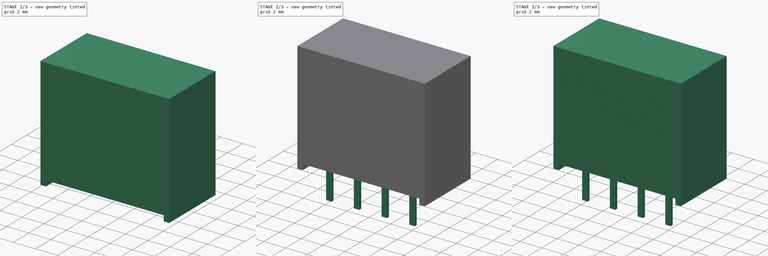
[diagram: build sequence overview — one tinted view per stage of 3, left to right]
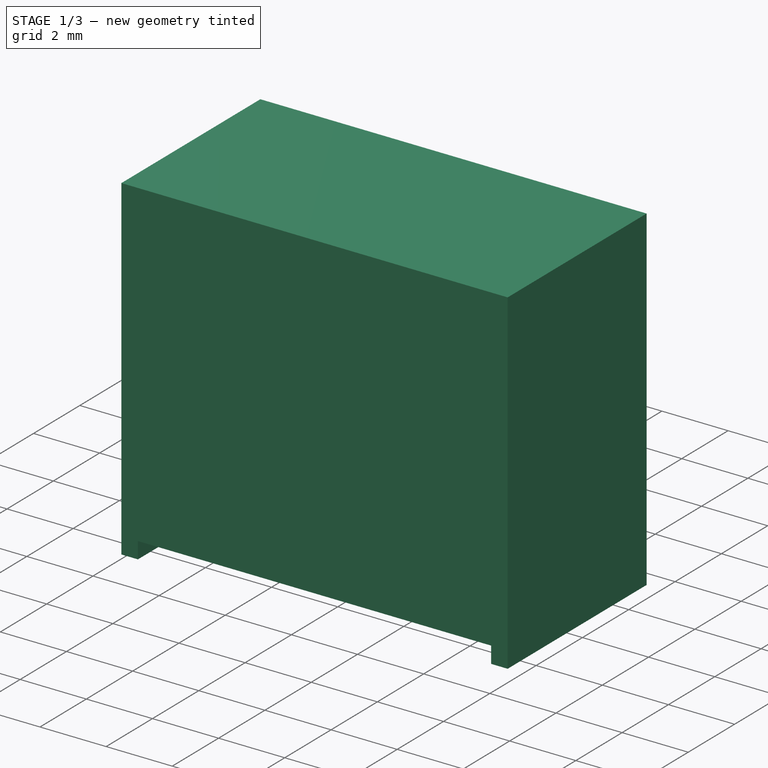
[diagram: stage 1 of 3 — iso view after this stage's code; geometry added in this stage tinted green]
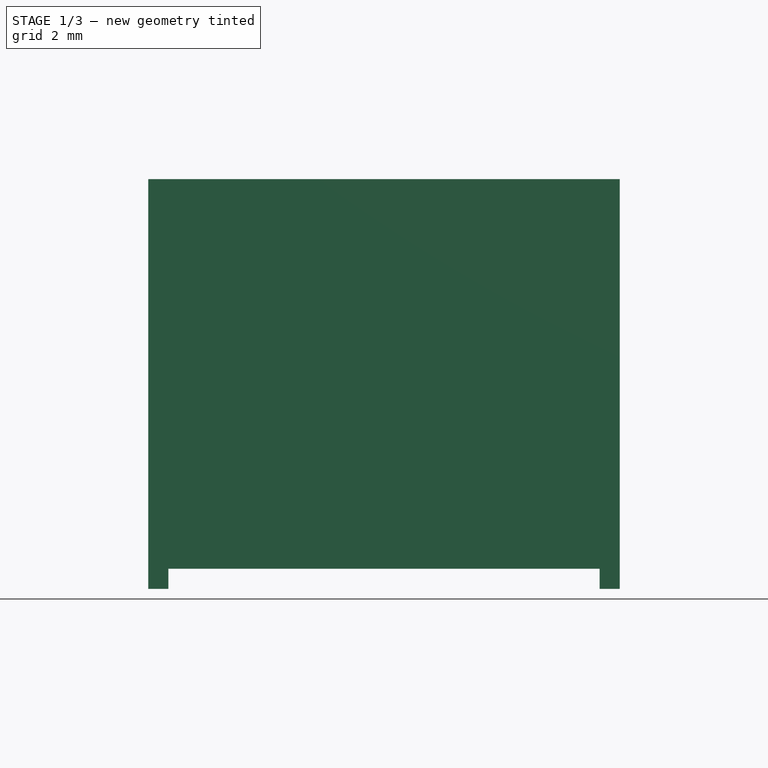
[diagram: stage 1 of 3 — front view after this stage's code; geometry added in this stage tinted green]
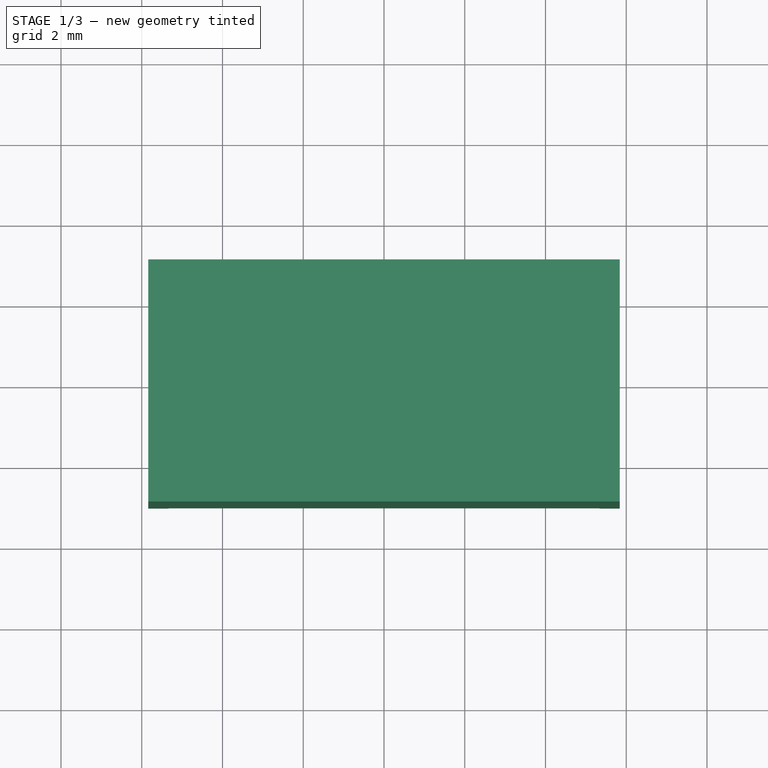
[diagram: stage 1 of 3 — top view after this stage's code; geometry added in this stage tinted green]
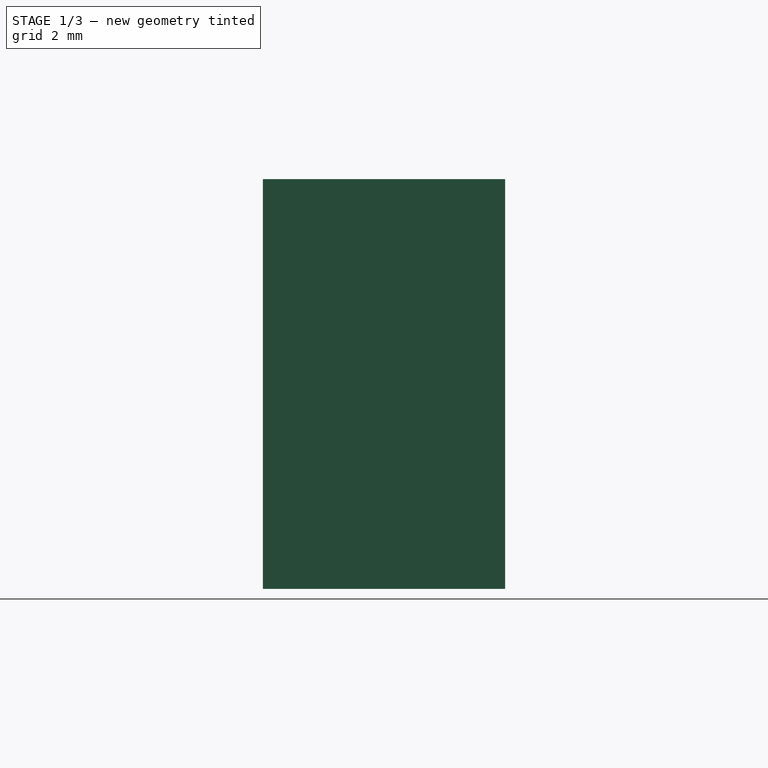
[diagram: stage 1 of 3 — right view after this stage's code; geometry added in this stage tinted green]
FCSTD DOCUMENT  (FreeCAD 1.0R39109 (Git))
Label: traco-sip4-tba1
License: All rights reserved
LicenseURL: https://en.wikipedia.org/wiki/All_rights_reserved
objects: Sketcher::SketchObject×5, PartDesign::Pad×5, Part::Feature×1, PartDesign::Body×1
note: 27 computed .brp shape members not serialized (recipe doc carries the construction recipe); baked Part::Feature solids carry a one-line shape summary decoded from their .brp

FEATURE [Sketcher::SketchObject] Sketch
  ArcFitTolerance = 1e-06
  AttachmentSupport = -> [XY_Plane]
  FullyConstrained = true
  MakeInternals = false
  MapMode = 5
  sketch-geometry (4):
    g0: LineSegment StartX=-5.84 StartY=3 StartZ=0 EndX=5.84 EndY=3 EndZ=0
    g1: LineSegment StartX=5.84 StartY=3 StartZ=0 EndX=5.84 EndY=-3 EndZ=0
    g2: LineSegment StartX=5.84 StartY=-3 StartZ=0 EndX=-5.84 EndY=-3 EndZ=0
    g3: LineSegment StartX=-5.84 StartY=-3 StartZ=0 EndX=-5.84 EndY=3 EndZ=0
  constraints (11):
    c: Coincident(g0,g1)
    c: Coincident(g1,g2)
    c: Coincident(g2,g3)
    c: Coincident(g3,g0)
    c: Horizontal(g0)
    c: Horizontal(g2)
    c: Vertical(g1)
    c: Vertical(g3)
    c: DistanceY(g1,g1) = 6
    c: DistanceX(g0,g0) = 11.68
    c: Symmetric(g0,g1,g-1)
FEATURE [PartDesign::Pad] Pad
  Direction = (0,0,1)
  Length = 9.65
  Length2 = 10
  Profile = -> Sketch
  ReferenceAxis = -> Sketch [N_Axis]
  Suppressed = false
  Type = 0
FEATURE [Sketcher::SketchObject] Sketch001
  ArcFitTolerance = 1e-06
  AttachmentSupport = -> [Pad]
  FullyConstrained = true
  MakeInternals = false
  MapMode = 5
  Placement = pos=(0,0,0) rot=(1,0,0;3.14159rad)
  sketch-geometry (8):
    g0: LineSegment StartX=-5.84 StartY=3 StartZ=0 EndX=-5.34 EndY=3 EndZ=0
    g1: LineSegment StartX=-5.34 StartY=3 StartZ=0 EndX=-5.34 EndY=-3 EndZ=0
    g2: LineSegment StartX=-5.34 StartY=-3 StartZ=0 EndX=-5.84 EndY=-3 EndZ=0
    g3: LineSegment StartX=-5.84 StartY=-3 StartZ=0 EndX=-5.84 EndY=3 EndZ=0
    g4: LineSegment StartX=5.34 StartY=3 StartZ=0 EndX=5.84 EndY=3 EndZ=0
    g5: LineSegment StartX=5.84 StartY=3 StartZ=0 EndX=5.84 EndY=-3 EndZ=0
    g6: LineSegment StartX=5.84 StartY=-3 StartZ=0 EndX=5.34 EndY=-3 EndZ=0
    g7: LineSegment StartX=5.34 StartY=-3 StartZ=0 EndX=5.34 EndY=3 EndZ=0
  constraints (23):
    c: Coincident(g0,g1)
    c: Coincident(g1,g2)
    c: Coincident(g2,g3)
    c: Coincident(g3,g0)
    c: Horizontal(g0)
    c: Horizontal(g2)
    c: Vertical(g1)
    c: Vertical(g3)
    c: DistanceX(g0,g0) = 0.5
    c: DistanceY(g3,g3) = 6
    c: DistanceY(g-1,g0) = 3
    c: Coincident(g4,g5)
    c: Coincident(g5,g6)
    c: Coincident(g6,g7)
    c: Coincident(g7,g4)
    c: Horizontal(g4)
    c: Horizontal(g6)
    c: Vertical(g5)
    c: Vertical(g7)
    c: Equal(g7,g1)
    c: Equal(g4,g0)
    c: Symmetric(g4,g2,g-1)
    c: DistanceX(g0,g-1) = 5.84
FEATURE [PartDesign::Pad] Pad001
  BaseFeature = -> Pad
  Direction = (0,0,-1)
  Length = 0.5
  Length2 = 10
  Profile = -> Sketch001
  ReferenceAxis = -> Sketch001 [N_Axis]
  Suppressed = false
  Type = 0
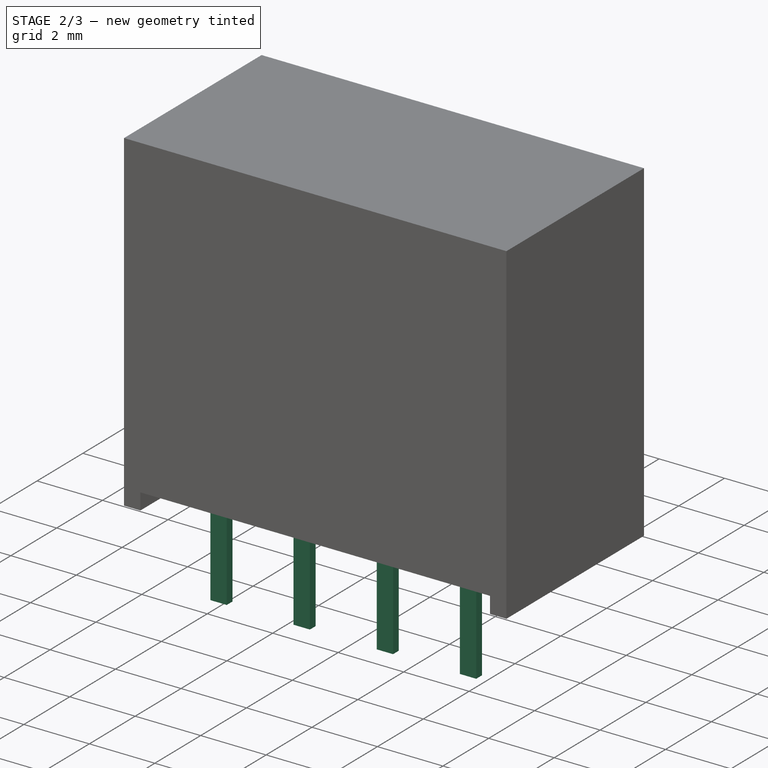
[diagram: stage 2 of 3 — iso view after this stage's code; geometry added in this stage tinted green]
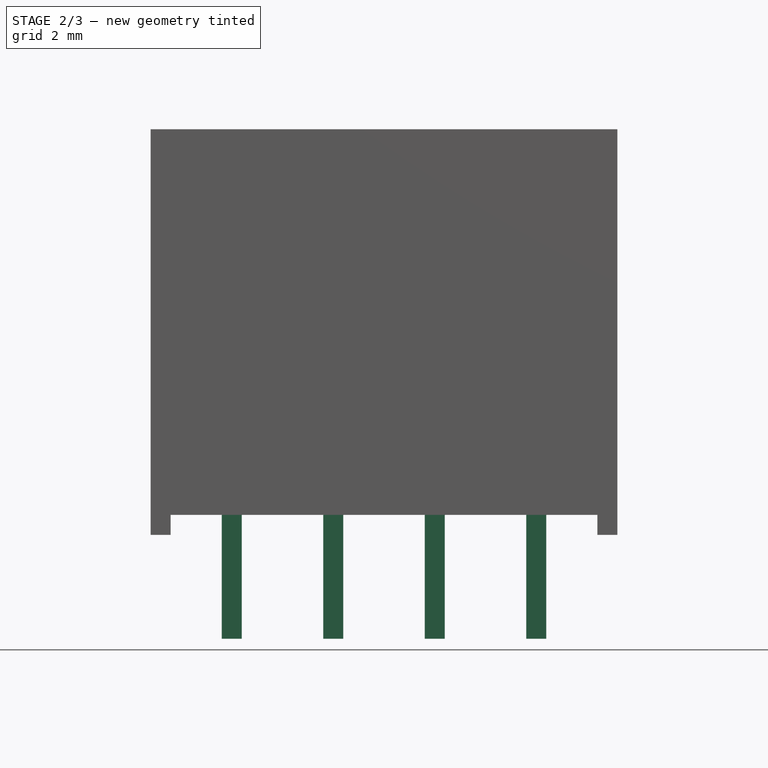
[diagram: stage 2 of 3 — front view after this stage's code; geometry added in this stage tinted green]
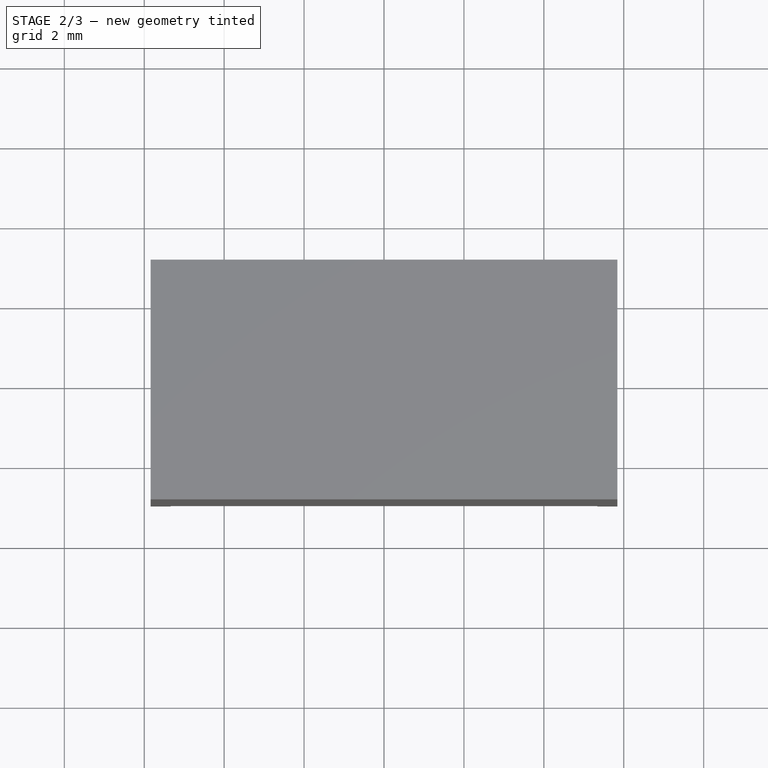
[diagram: stage 2 of 3 — top view after this stage's code; geometry added in this stage tinted green]
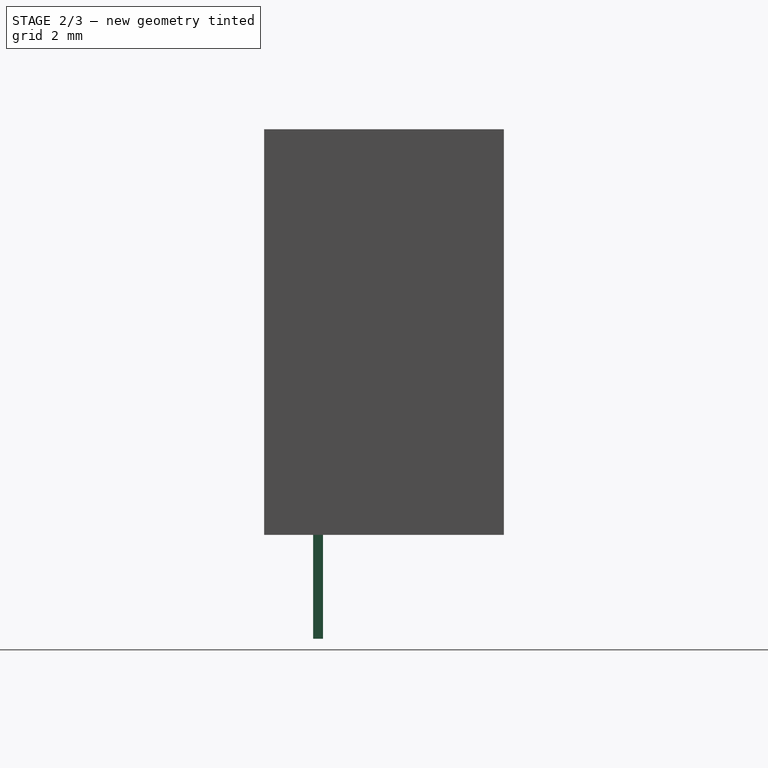
[diagram: stage 2 of 3 — right view after this stage's code; geometry added in this stage tinted green]
FEATURE [Sketcher::SketchObject] Sketch002
  ArcFitTolerance = 1e-06
  AttachmentSupport = -> [Pad001]
  FullyConstrained = true
  MakeInternals = false
  MapMode = 5
  Placement = pos=(0,0,0) rot=(1,0,0;3.14159rad)
  sketch-geometry (16):
    g0: LineSegment StartX=-4.06 StartY=1.775 StartZ=0 EndX=-3.56 EndY=1.775 EndZ=0
    g1: LineSegment StartX=-3.56 StartY=1.775 StartZ=0 EndX=-3.56 EndY=1.525 EndZ=0
    g2: LineSegment StartX=-3.56 StartY=1.525 StartZ=0 EndX=-4.06 EndY=1.525 EndZ=0
    g3: LineSegment StartX=-4.06 StartY=1.525 StartZ=0 EndX=-4.06 EndY=1.775 EndZ=0
    g4: LineSegment StartX=-1.52 StartY=1.775 StartZ=0 EndX=-1.02 EndY=1.775 EndZ=0
    g5: LineSegment StartX=-1.02 StartY=1.775 StartZ=0 EndX=-1.02 EndY=1.525 EndZ=0
    g6: LineSegment StartX=-1.02 StartY=1.525 StartZ=0 EndX=-1.52 EndY=1.525 EndZ=0
    g7: LineSegment StartX=-1.52 StartY=1.525 StartZ=0 EndX=-1.52 EndY=1.775 EndZ=0
    g8: LineSegment StartX=1.02 StartY=1.775 StartZ=0 EndX=1.52 EndY=1.775 EndZ=0
    g9: LineSegment StartX=1.52 StartY=1.775 StartZ=0 EndX=1.52 EndY=1.525 EndZ=0
    g10: LineSegment StartX=1.52 StartY=1.525 StartZ=0 EndX=1.02 EndY=1.525 EndZ=0
    g11: LineSegment StartX=1.02 StartY=1.525 StartZ=0 EndX=1.02 EndY=1.775 EndZ=0
    g12: LineSegment StartX=3.56 StartY=1.775 StartZ=0 EndX=4.06 EndY=1.775 EndZ=0
    g13: LineSegment StartX=4.06 StartY=1.775 StartZ=0 EndX=4.06 EndY=1.525 EndZ=0
    g14: LineSegment StartX=4.06 StartY=1.525 StartZ=0 EndX=3.56 EndY=1.525 EndZ=0
    g15: LineSegment StartX=3.56 StartY=1.525 StartZ=0 EndX=3.56 EndY=1.775 EndZ=0
  constraints (48):
    c: Coincident(g0,g1)
    c: Coincident(g1,g2)
    c: Coincident(g2,g3)
    c: Coincident(g3,g0)
    c: Horizontal(g0)
    c: Horizontal(g2)
    c: Vertical(g1)
    c: Vertical(g3)
    c: Coincident(g4,g5)
    c: Coincident(g5,g6)
    c: Coincident(g6,g7)
    c: Coincident(g7,g4)
    c: Horizontal(g4)
    c: Horizontal(g6)
    c: Vertical(g5)
    c: Vertical(g7)
    c: Coincident(g8,g9)
    c: Coincident(g9,g10)
    c: Coincident(g10,g11)
    c: Coincident(g11,g8)
    c: Horizontal(g8)
    c: Horizontal(g10)
    c: Vertical(g9)
    c: Vertical(g11)
    c: Coincident(g12,g13)
    c: Coincident(g13,g14)
    c: Coincident(g14,g15)
    c: Coincident(g15,g12)
    c: Horizontal(g12)
    c: Horizontal(g14)
    c: Vertical(g13)
    c: Vertical(g15)
    c: Equal(g0,g4)
    c: Equal(g4,g8)
    c: Equal(g8,g12)
    c: Equal(g1,g5)
    c: Equal(g5,g9)
    c: Equal(g9,g13)
    c: DistanceX(g0,g0) = 0.5
    c: DistanceY(g3,g3) = 0.25
    c: Horizontal(g4,g0)
    c: Horizontal(g8,g4)
    c: Horizontal(g12,g8)
    c: DistanceX(g0,g4) = 2.54
    c: DistanceX(g8,g12) = 2.54
    c: DistanceX(g4,g8) = 2.54
    c: DistanceY(g-1,g1) = 1.525
    c: DistanceX(g0,g-1) = 4.06
FEATURE [PartDesign::Pad] Pad002
  BaseFeature = -> Pad001
  Direction = (0,0,-1)
  Length = 3.1
  Length2 = 10
  Profile = -> Sketch002
  ReferenceAxis = -> Sketch002 [N_Axis]
  Suppressed = false
  Type = 0
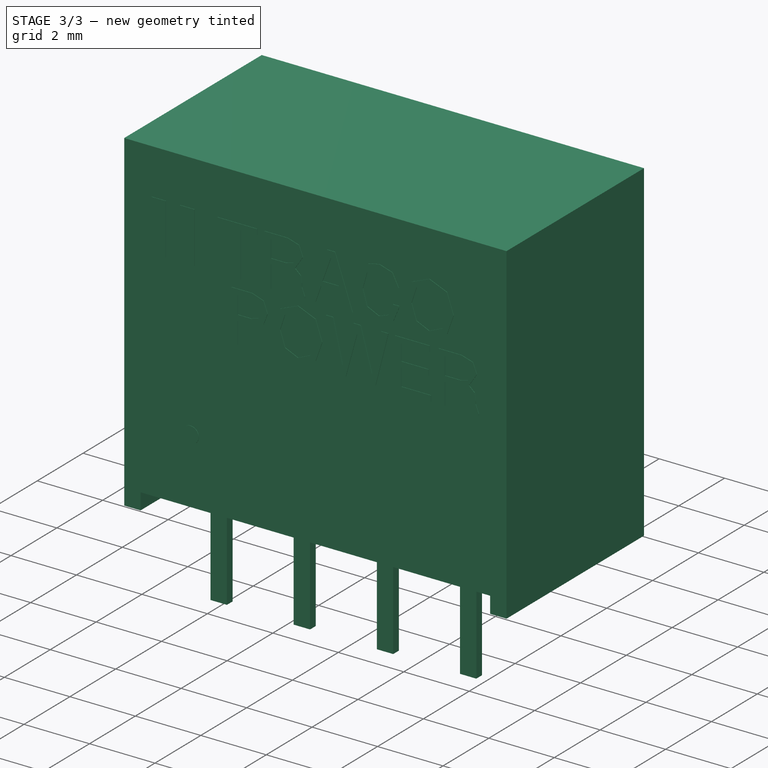
[diagram: stage 3 of 3 — iso view after this stage's code; geometry added in this stage tinted green]
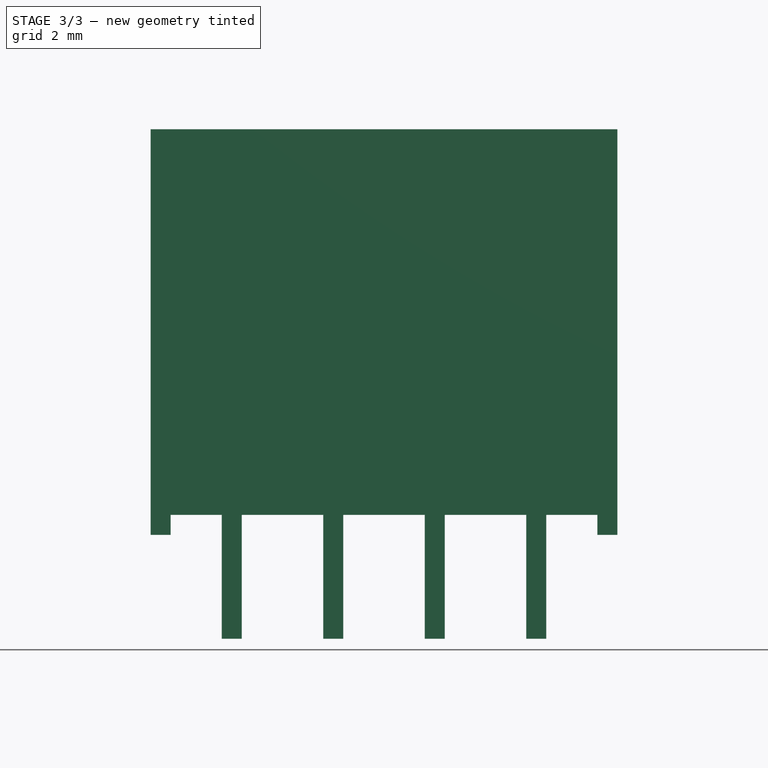
[diagram: stage 3 of 3 — front view after this stage's code; geometry added in this stage tinted green]
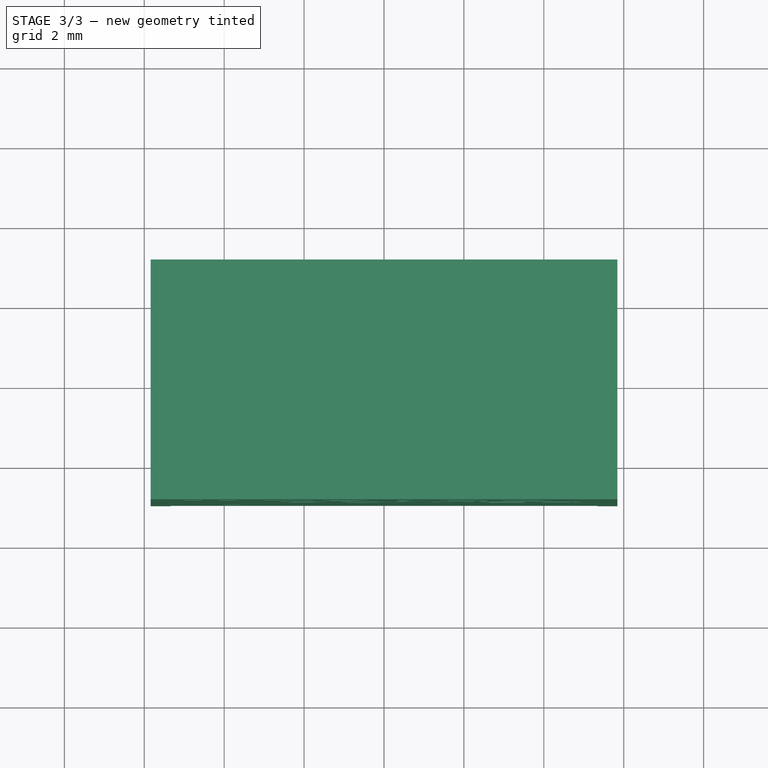
[diagram: stage 3 of 3 — top view after this stage's code; geometry added in this stage tinted green]
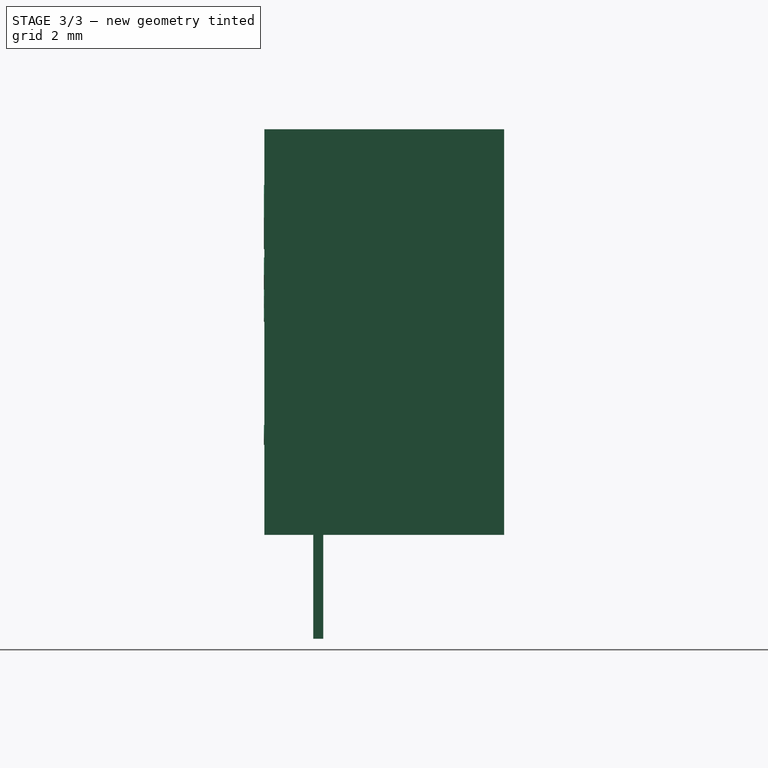
[diagram: stage 3 of 3 — right view after this stage's code; geometry added in this stage tinted green]
FEATURE [Sketcher::SketchObject] Sketch003
  ArcFitTolerance = 1e-06
  AttachmentSupport = -> [Pad002]
  FullyConstrained = true
  MakeInternals = false
  MapMode = 5
  Placement = pos=(0,-3,0) rot=(1,0,0;1.5708rad)
  sketch-geometry (1):
    g0: Circle CenterX=-3.81 CenterY=2 CenterZ=0 NormalX=0 NormalY=0 NormalZ=1 AngleXU=0 Radius=0.25
  constraints (3):
    c: Diameter(g0) = 0.5
    c: DistanceX(g0,g-1) = 3.81
    c: DistanceY(g-1,g0) = 2
FEATURE [PartDesign::Pad] Pad003
  BaseFeature = -> Pad002
  Direction = (0,-1,2e-16)
  Length = 0.01
  Length2 = 10
  Profile = -> Sketch003
  ReferenceAxis = -> Sketch003 [N_Axis]
  Suppressed = false
  Type = 0
FEATURE [Part::Feature] traco_sip4
  Placement = pos=(-63,0,-242) rot=(1,0,0;1.5708rad)
  shape: bbox 10 x 2e-07 x 3.422 mm, 15 faces, 0 solids (baked)
FEATURE [Sketcher::SketchObject] Sketch004
  ArcFitTolerance = 1e-06
  AttachmentSupport = -> [Pad003]
  FullyConstrained = false
  MakeInternals = false
  MapMode = 45
  Placement = pos=(-5,-3,5) rot=(1,0,0;1.5708rad)
  sketch-geometry (172):
    g0: LineSegment StartX=2.72029 StartY=3.05854 StartZ=0 EndX=3.2227 EndY=3.05854 EndZ=0
    g1: LineSegment StartX=3.2227 StartY=3.05854 StartZ=0 EndX=3.2227 EndY=3.23092 EndZ=0
    g2: LineSegment StartX=3.2227 StartY=3.23092 StartZ=0 EndX=2.02027 EndY=3.23092 EndZ=0
    g3: LineSegment StartX=2.02027 StartY=3.23092 StartZ=0 EndX=2.02027 EndY=3.05854 EndZ=0
    g4: LineSegment StartX=2.02027 StartY=3.05854 StartZ=0 EndX=2.52479 EndY=3.05854 EndZ=0
    g5: LineSegment StartX=2.52479 StartY=3.05854 StartZ=0 EndX=2.52479 EndY=1.69845 EndZ=0
    g6: LineSegment StartX=2.52479 StartY=1.69845 StartZ=0 EndX=2.72029 EndY=1.69845 EndZ=0
    g7: LineSegment StartX=2.72029 StartY=1.69845 StartZ=0 EndX=2.72029 EndY=3.05854 EndZ=0
    g8: LineSegment StartX=4.38519 StartY=2.45523 StartZ=0 EndX=4.62694 EndY=2.821 EndZ=0
    g9: LineSegment StartX=4.62694 StartY=2.821 StartZ=0 EndX=4.50633 EndY=3.12529 EndZ=0
    g10: LineSegment StartX=4.50633 StartY=3.12529 StartZ=0 EndX=4.16026 EndY=3.23092 EndZ=0
    g11: LineSegment StartX=4.16026 StartY=3.23092 StartZ=0 EndX=3.45394 EndY=3.23092 EndZ=0
    g12: LineSegment StartX=3.45394 StartY=3.23092 StartZ=0 EndX=3.45394 EndY=1.69845 EndZ=0
    g13: LineSegment StartX=3.45394 StartY=1.69845 StartZ=0 EndX=3.64944 EndY=1.69845 EndZ=0
    g14: LineSegment StartX=3.64944 StartY=1.69845 StartZ=0 EndX=3.64944 EndY=2.35853 EndZ=0
    g15: LineSegment StartX=3.64944 StartY=2.35853 StartZ=0 EndX=4.15395 EndY=2.35853 EndZ=0
    g16: LineSegment StartX=4.15395 StartY=2.35853 StartZ=0 EndX=4.34551 EndY=2.29283 EndZ=0
    g17: LineSegment StartX=4.34551 StartY=2.29283 StartZ=0 EndX=4.40621 EndY=2.08525 EndZ=0
    g18: LineSegment StartX=4.40621 StartY=2.08525 StartZ=0 EndX=4.40621 EndY=1.94861 EndZ=0
    g19: LineSegment StartX=4.40621 StartY=1.94861 StartZ=0 EndX=4.44826 EndY=1.69845 EndZ=0
    g20: LineSegment StartX=4.44826 StartY=1.69845 StartZ=0 EndX=4.6858 EndY=1.69845 EndZ=0
    g21: LineSegment StartX=4.6858 StartY=1.69845 StartZ=0 EndX=4.6858 EndY=1.7468 EndZ=0
    g22: LineSegment StartX=4.6858 StartY=1.7468 StartZ=0 EndX=4.5933 EndY=1.98855 EndZ=0
    g23: LineSegment StartX=4.5933 StartY=1.98855 StartZ=0 EndX=4.5954 EndY=2.09576 EndZ=0
    g24: LineSegment StartX=4.5954 StartY=2.09576 StartZ=0 EndX=4.56203 EndY=2.29678 EndZ=0
    g25: LineSegment StartX=4.56203 StartY=2.29678 StartZ=0 EndX=4.38519 EndY=2.45523 EndZ=0
    g26: LineSegment StartX=4.38519 StartY=2.45523 StartZ=0 EndX=4.38519 EndY=2.45523 EndZ=0
    g27: LineSegment StartX=4.42303 StartY=2.79367 StartZ=0 EndX=4.35077 EndY=2.59449 EndZ=0
    g28: LineSegment StartX=4.35077 StartY=2.59449 StartZ=0 EndX=4.12242 EndY=2.5309 EndZ=0
    g29: LineSegment StartX=4.12242 StartY=2.5309 StartZ=0 EndX=3.64944 EndY=2.5309 EndZ=0
    g30: LineSegment StartX=3.64944 StartY=2.5309 StartZ=0 EndX=3.64944 EndY=3.05854 EndZ=0
    g31: LineSegment StartX=3.64944 StartY=3.05854 StartZ=0 EndX=4.12242 EndY=3.05854 EndZ=0
    g32: LineSegment StartX=4.12242 StartY=3.05854 StartZ=0 EndX=4.33421 EndY=3.00809 EndZ=0
    g33: LineSegment StartX=4.33421 StartY=3.00809 StartZ=0 EndX=4.42303 EndY=2.79367 EndZ=0
    g34: LineSegment StartX=5.76841 StartY=2.15882 StartZ=0 EndX=5.92607 EndY=1.69845 EndZ=0
    g35: LineSegment StartX=5.92607 StartY=1.69845 StartZ=0 EndX=6.14469 EndY=1.69845 EndZ=0
    g36: LineSegment StartX=6.14469 StartY=1.69845 StartZ=0 EndX=5.60654 EndY=3.23092 EndZ=0
    g37: LineSegment StartX=5.60654 StartY=3.23092 StartZ=0 EndX=5.35428 EndY=3.23092 EndZ=0
    g38: LineSegment StartX=5.35428 StartY=3.23092 StartZ=0 EndX=4.80772 EndY=1.69845 EndZ=0
    g39: LineSegment StartX=4.80772 StartY=1.69845 StartZ=0 EndX=5.01583 EndY=1.69845 EndZ=0
    g40: LineSegment StartX=5.01583 StartY=1.69845 StartZ=0 EndX=5.1777 EndY=2.15882 EndZ=0
    g41: LineSegment StartX=5.1777 StartY=2.15882 StartZ=0 EndX=5.76841 EndY=2.15882 EndZ=0
    g42: LineSegment StartX=5.47831 StartY=3.0207 StartZ=0 EndX=5.71375 EndY=2.32279 EndZ=0
    g43: LineSegment StartX=5.71375 StartY=2.32279 StartZ=0 EndX=5.22605 EndY=2.32279 EndZ=0
    g44: LineSegment StartX=5.22605 StartY=2.32279 StartZ=0 EndX=5.47831 EndY=3.0207 EndZ=0
    g45: LineSegment StartX=6.26031 StartY=2.44682 StartZ=0 EndX=6.39878 EndY=1.931 EndZ=0
    g46: LineSegment StartX=6.39878 StartY=1.931 StartZ=0 EndX=6.61061 EndY=1.73054 EndZ=0
    g47: LineSegment StartX=6.61061 StartY=1.73054 StartZ=0 EndX=6.95191 EndY=1.6501 EndZ=0
    g48: LineSegment StartX=6.95191 StartY=1.6501 StartZ=0 EndX=7.39021 EndY=1.80172 EndZ=0
    g49: LineSegment StartX=7.39021 StartY=1.80172 StartZ=0 EndX=7.58256 EndY=2.25762 EndZ=0
    g50: LineSegment StartX=7.58256 StartY=2.25762 StartZ=0 EndX=7.38075 EndY=2.25762 EndZ=0
    g51: LineSegment StartX=7.38075 StartY=2.25762 StartZ=0 EndX=7.24621 EndY=1.93126 EndZ=0
    g52: LineSegment StartX=7.24621 StartY=1.93126 StartZ=0 EndX=6.95401 EndY=1.82248 EndZ=0
    g53: LineSegment StartX=6.95401 StartY=1.82248 StartZ=0 EndX=6.5906 EndY=1.99223 EndZ=0
    g54: LineSegment StartX=6.5906 StartY=1.99223 StartZ=0 EndX=6.4558 EndY=2.44892 EndZ=0
    g55: LineSegment StartX=6.4558 StartY=2.44892 StartZ=0 EndX=6.58535 EndY=2.91376 EndZ=0
    g56: LineSegment StartX=6.58535 StartY=2.91376 StartZ=0 EndX=6.9372 EndY=3.08377 EndZ=0
    g57: LineSegment StartX=6.9372 StartY=3.08377 StartZ=0 EndX=7.22072 EndY=3.00021 EndZ=0
    g58: LineSegment StartX=7.22072 StartY=3.00021 StartZ=0 EndX=7.35132 EndY=2.75583 EndZ=0
    g59: LineSegment StartX=7.35132 StartY=2.75583 StartZ=0 EndX=7.55103 EndY=2.75583 EndZ=0
    g60: LineSegment StartX=7.55103 StartY=2.75583 StartZ=0 EndX=7.35894 EndY=3.13212 EndZ=0
    g61: LineSegment StartX=7.35894 StartY=3.13212 StartZ=0 EndX=6.96032 EndY=3.25615 EndZ=0
    g62: LineSegment StartX=6.96032 StartY=3.25615 StartZ=0 EndX=6.61504 EndY=3.17462 EndZ=0
    g63: LineSegment StartX=6.61504 StartY=3.17462 StartZ=0 EndX=6.40062 EndY=2.9713 EndZ=0
    g64: LineSegment StartX=6.40062 StartY=2.9713 StartZ=0 EndX=6.26031 EndY=2.44682 EndZ=0
    g65: LineSegment StartX=9.23064 StartY=2.44051 StartZ=0 EndX=9.02831 EndY=3.03358 EndZ=0
    g66: LineSegment StartX=9.02831 StartY=3.03358 StartZ=0 EndX=8.48858 EndY=3.25615 EndZ=0
    g67: LineSegment StartX=8.48858 StartY=3.25615 StartZ=0 EndX=7.9549 EndY=3.03437 EndZ=0
    g68: LineSegment StartX=7.9549 StartY=3.03437 StartZ=0 EndX=7.75073 EndY=2.45312 EndZ=0
    g69: LineSegment StartX=7.75073 StartY=2.45312 StartZ=0 EndX=7.95516 EndY=1.87188 EndZ=0
    g70: LineSegment StartX=7.95516 StartY=1.87188 StartZ=0 EndX=8.49069 EndY=1.6501 EndZ=0
    g71: LineSegment StartX=8.49069 StartY=1.6501 StartZ=0 EndX=9.03252 EndY=1.87976 EndZ=0
    g72: LineSegment StartX=9.03252 StartY=1.87976 StartZ=0 EndX=9.23064 EndY=2.44051 EndZ=0
    g73: LineSegment StartX=8.48858 StartY=3.08377 StartZ=0 EndX=8.88641 EndY=2.90929 EndZ=0
    g74: LineSegment StartX=8.88641 StartY=2.90929 StartZ=0 EndX=9.03514 EndY=2.44472 EndZ=0
    g75: LineSegment StartX=9.03514 StartY=2.44472 StartZ=0 EndX=8.88431 EndY=1.99486 EndZ=0
    g76: LineSegment StartX=8.88431 StartY=1.99486 StartZ=0 EndX=8.49069 EndY=1.82248 EndZ=0
    g77: LineSegment StartX=8.49069 StartY=1.82248 StartZ=0 EndX=8.09627 EndY=1.99591 EndZ=0
    g78: LineSegment StartX=8.09627 StartY=1.99591 StartZ=0 EndX=7.94623 EndY=2.45312 EndZ=0
    g79: LineSegment StartX=7.94623 StartY=2.45312 StartZ=0 EndX=8.09601 EndY=2.91034 EndZ=0
    g80: LineSegment StartX=8.09601 StartY=2.91034 StartZ=0 EndX=8.48858 EndY=3.08377 EndZ=0
    g81: LineSegment StartX=3.54643 StartY=0.964801 StartZ=0 EndX=3.42346 EndY=1.29773 EndZ=0
    g82: LineSegment StartX=3.42346 StartY=1.29773 StartZ=0 EndX=3.07345 EndY=1.41466 EndZ=0
    g83: LineSegment StartX=3.07345 StartY=1.41466 StartZ=0 EndX=2.4407 EndY=1.41466 EndZ=0
    g84: LineSegment StartX=2.4407 StartY=1.41466 StartZ=0 EndX=2.4407 EndY=-0.117807 EndZ=0
    g85: LineSegment StartX=2.4407 StartY=-0.117807 StartZ=0 EndX=2.6362 EndY=-0.117807 EndZ=0
    g86: LineSegment StartX=2.6362 StartY=-0.117807 StartZ=0 EndX=2.6362 EndY=0.531758 EndZ=0
    g87: LineSegment StartX=2.6362 StartY=0.531758 StartZ=0 EndX=3.1176 EndY=0.531758 EndZ=0
    g88: LineSegment StartX=3.1176 StartY=0.531758 StartZ=0 EndX=3.42661 EndY=0.649741 EndZ=0
    g89: LineSegment StartX=3.42661 StartY=0.649741 StartZ=0 EndX=3.54643 EndY=0.964801 EndZ=0
    g90: LineSegment StartX=3.04402 StartY=0.704134 StartZ=0 EndX=2.6362 EndY=0.704134 EndZ=0
    g91: LineSegment StartX=2.6362 StartY=0.704134 StartZ=0 EndX=2.6362 EndY=1.24228 EndZ=0
    g92: LineSegment StartX=2.6362 StartY=1.24228 StartZ=0 EndX=3.04402 EndY=1.24228 EndZ=0
    g93: LineSegment StartX=3.04402 StartY=1.24228 StartZ=0 EndX=3.26343 EndY=1.17081 EndZ=0
    g94: LineSegment StartX=3.26343 StartY=1.17081 StartZ=0 EndX=3.34253 EndY=0.973209 EndZ=0
    g95: LineSegment StartX=3.34253 StartY=0.973209 StartZ=0 EndX=3.26343 EndY=0.775607 EndZ=0
    g96: LineSegment StartX=3.26343 StartY=0.775607 StartZ=0 EndX=3.04402 EndY=0.704134 EndZ=0
    g97: LineSegment StartX=5.21554 StartY=0.624252 StartZ=0 EndX=5.01321 EndY=1.21732 EndZ=0
    g98: LineSegment StartX=5.01321 StartY=1.21732 StartZ=0 EndX=4.47348 EndY=1.43989 EndZ=0
    g99: LineSegment StartX=4.47348 StartY=1.43989 StartZ=0 EndX=3.9398 EndY=1.21811 EndZ=0
    g100: LineSegment StartX=3.9398 StartY=1.21811 StartZ=0 EndX=3.73562 EndY=0.636865 EndZ=0
    g101: LineSegment StartX=3.73562 StartY=0.636865 StartZ=0 EndX=3.94006 EndY=0.055621 EndZ=0
    g102: LineSegment StartX=3.94006 StartY=0.055621 StartZ=0 EndX=4.47558 EndY=-0.166156 EndZ=0
    g103: LineSegment StartX=4.47558 StartY=-0.166156 StartZ=0 EndX=5.01741 EndY=0.063504 EndZ=0
    g104: LineSegment StartX=5.01741 StartY=0.063504 StartZ=0 EndX=5.21554 EndY=0.624252 EndZ=0
    g105: LineSegment StartX=4.0809 StartY=1.09408 StartZ=0 EndX=4.47348 EndY=1.26751 EndZ=0
    g106: LineSegment StartX=4.47348 StartY=1.26751 StartZ=0 EndX=4.87131 EndY=1.09303 EndZ=0
    g107: LineSegment StartX=4.87131 StartY=1.09303 StartZ=0 EndX=5.02004 EndY=0.628457 EndZ=0
    g108: LineSegment StartX=5.02004 StartY=0.628457 StartZ=0 EndX=4.86921 EndY=0.178597 EndZ=0
    g109: LineSegment StartX=4.86921 StartY=0.178597 StartZ=0 EndX=4.47558 EndY=0.00622 EndZ=0
    g110: LineSegment StartX=4.47558 StartY=0.00622 StartZ=0 EndX=4.08116 EndY=0.179648 EndZ=0
    g111: LineSegment StartX=4.08116 StartY=0.179648 StartZ=0 EndX=3.93112 EndY=0.636865 EndZ=0
    g112: LineSegment StartX=3.93112 StartY=0.636865 StartZ=0 EndX=4.0809 EndY=1.09408 EndZ=0
    g113: LineSegment StartX=6.84891 StartY=-0.117807 StartZ=0 EndX=7.2378 EndY=1.41466 EndZ=0
    g114: LineSegment StartX=7.2378 StartY=1.41466 StartZ=0 EndX=7.01918 EndY=1.41466 EndZ=0
    g115: LineSegment StartX=7.01918 StartY=1.41466 StartZ=0 EndX=6.73749 EndY=0.170188 EndZ=0
    g116: LineSegment StartX=6.73749 StartY=0.170188 StartZ=0 EndX=6.38853 EndY=1.41466 EndZ=0
    g117: LineSegment StartX=6.38853 StartY=1.41466 StartZ=0 EndX=6.17832 EndY=1.41466 EndZ=0
    g118: LineSegment StartX=6.17832 StartY=1.41466 StartZ=0 EndX=5.83777 EndY=0.170188 EndZ=0
    g119: LineSegment StartX=5.83777 StartY=0.170188 StartZ=0 EndX=5.54978 EndY=1.41466 EndZ=0
    g120: LineSegment StartX=5.54978 StartY=1.41466 StartZ=0 EndX=5.33115 EndY=1.41466 EndZ=0
    g121: LineSegment StartX=5.33115 StartY=1.41466 StartZ=0 EndX=5.72425 EndY=-0.117807 EndZ=0
    g122: LineSegment StartX=5.72425 StartY=-0.117807 StartZ=0 EndX=5.93867 EndY=-0.117807 EndZ=0
    g123: LineSegment StartX=5.93867 StartY=-0.117807 StartZ=0 EndX=6.28132 EndY=1.14138 EndZ=0
    g124: LineSegment StartX=6.28132 StartY=1.14138 StartZ=0 EndX=6.63449 EndY=-0.117807 EndZ=0
    g125: LineSegment StartX=6.63449 StartY=-0.117807 StartZ=0 EndX=6.84891 EndY=-0.117807 EndZ=0
    g126: LineSegment StartX=7.633 StartY=0.580107 StartZ=0 EndX=8.46756 EndY=0.580107 EndZ=0
    g127: LineSegment StartX=8.46756 StartY=0.580107 StartZ=0 EndX=8.46756 EndY=0.752483 EndZ=0
    g128: LineSegment StartX=8.46756 StartY=0.752483 StartZ=0 EndX=7.633 EndY=0.752483 EndZ=0
    g129: LineSegment StartX=7.633 StartY=0.752483 StartZ=0 EndX=7.633 EndY=1.24228 EndZ=0
    g130: LineSegment StartX=7.633 StartY=1.24228 StartZ=0 EndX=8.49909 EndY=1.24228 EndZ=0
    g131: LineSegment StartX=8.49909 StartY=1.24228 StartZ=0 EndX=8.49909 EndY=1.41466 EndZ=0
    g132: LineSegment StartX=8.49909 StartY=1.41466 StartZ=0 EndX=7.4375 EndY=1.41466 EndZ=0
    g133: LineSegment StartX=7.4375 StartY=1.41466 StartZ=0 EndX=7.4375 EndY=-0.117807 EndZ=0
    g134: LineSegment StartX=7.4375 StartY=-0.117807 StartZ=0 EndX=8.53693 EndY=-0.117807 EndZ=0
    g135: LineSegment StartX=8.53693 StartY=-0.117807 StartZ=0 EndX=8.53693 EndY=0.05457 EndZ=0
    g136: LineSegment StartX=8.53693 StartY=0.05457 StartZ=0 EndX=7.633 EndY=0.05457 EndZ=0
    g137: LineSegment StartX=7.633 StartY=0.05457 StartZ=0 EndX=7.633 EndY=0.580107 EndZ=0
    g138: LineSegment StartX=9.69942 StartY=0.638967 StartZ=0 EndX=9.94116 EndY=1.00474 EndZ=0
    g139: LineSegment StartX=9.94116 StartY=1.00474 StartZ=0 EndX=9.82055 EndY=1.30903 EndZ=0
    g140: LineSegment StartX=9.82055 StartY=1.30903 StartZ=0 EndX=9.47449 EndY=1.41466 EndZ=0
    g141: LineSegment StartX=9.47449 StartY=1.41466 StartZ=0 EndX=8.76816 EndY=1.41466 EndZ=0
    g142: LineSegment StartX=8.76816 StartY=1.41466 StartZ=0 EndX=8.76816 EndY=-0.117807 EndZ=0
    g143: LineSegment StartX=8.76816 StartY=-0.117807 StartZ=0 EndX=8.96366 EndY=-0.117807 EndZ=0
    g144: LineSegment StartX=8.96366 StartY=-0.117807 StartZ=0 EndX=8.96366 EndY=0.542268 EndZ=0
    g145: LineSegment StartX=8.96366 StartY=0.542268 StartZ=0 EndX=9.46818 EndY=0.542268 EndZ=0
    g146: LineSegment StartX=9.46818 StartY=0.542268 StartZ=0 EndX=9.65974 EndY=0.476576 EndZ=0
    g147: LineSegment StartX=9.65974 StartY=0.476576 StartZ=0 EndX=9.72044 EndY=0.268989 EndZ=0
    g148: LineSegment StartX=9.72044 StartY=0.268989 StartZ=0 EndX=9.72044 EndY=0.132349 EndZ=0
    g149: LineSegment StartX=9.72044 StartY=0.132349 StartZ=0 EndX=9.76248 EndY=-0.117807 EndZ=0
    g150: LineSegment StartX=9.76248 StartY=-0.117807 StartZ=0 EndX=10 EndY=-0.117807 EndZ=0
    g151: LineSegment StartX=10 StartY=-0.117807 StartZ=0 EndX=10 EndY=-0.069457 EndZ=0
    g152: LineSegment StartX=10 StartY=-0.069457 StartZ=0 EndX=9.90753 EndY=0.17229 EndZ=0
    g153: LineSegment StartX=9.90753 StartY=0.17229 StartZ=0 EndX=9.90964 EndY=0.2795 EndZ=0
    g154: LineSegment StartX=9.90964 StartY=0.2795 StartZ=0 EndX=9.87626 EndY=0.480518 EndZ=0
    g155: LineSegment StartX=9.87626 StartY=0.480518 StartZ=0 EndX=9.69942 EndY=0.638967 EndZ=0
    g156: LineSegment StartX=9.69942 StartY=0.638967 StartZ=0 EndX=9.69942 EndY=0.638967 EndZ=0
    g157: LineSegment StartX=9.73726 StartY=0.977414 StartZ=0 EndX=9.66499 EndY=0.778235 EndZ=0
    g158: LineSegment StartX=9.66499 StartY=0.778235 StartZ=0 EndX=9.43665 EndY=0.714645 EndZ=0
    g159: LineSegment StartX=9.43665 StartY=0.714645 StartZ=0 EndX=8.96366 EndY=0.714645 EndZ=0
    g160: LineSegment StartX=8.96366 StartY=0.714645 StartZ=0 EndX=8.96366 EndY=1.24228 EndZ=0
    g161: LineSegment StartX=8.96366 StartY=1.24228 StartZ=0 EndX=9.43665 EndY=1.24228 EndZ=0
    g162: LineSegment StartX=9.43665 StartY=1.24228 StartZ=0 EndX=9.64844 EndY=1.19183 EndZ=0
    g163: LineSegment StartX=9.64844 StartY=1.19183 StartZ=0 EndX=9.73726 EndY=0.977414 EndZ=0
    g164: LineSegment StartX=2.7e-05 StartY=3.25615 StartZ=0 EndX=0.437011 EndY=3.25615 EndZ=0
    g165: LineSegment StartX=0.437011 StartY=3.25615 StartZ=0 EndX=0.437011 EndY=1.69845 EndZ=0
    g166: LineSegment StartX=0.437011 StartY=1.69845 StartZ=0 EndX=2.7e-05 EndY=1.69845 EndZ=0
    g167: LineSegment StartX=2.7e-05 StartY=1.69845 StartZ=0 EndX=2.7e-05 EndY=3.25615 EndZ=0
    g168: LineSegment StartX=0.873995 StartY=3.25615 StartZ=0 EndX=1.31098 EndY=3.25615 EndZ=0
    g169: LineSegment StartX=1.31098 StartY=3.25615 StartZ=0 EndX=1.31098 EndY=1.69845 EndZ=0
    g170: LineSegment StartX=1.31098 StartY=1.69845 StartZ=0 EndX=0.873995 EndY=1.69845 EndZ=0
    g171: LineSegment StartX=0.873995 StartY=1.69845 StartZ=0 EndX=0.873995 EndY=3.25615 EndZ=0
  constraints (244):
    c: Horizontal(g0)
    c: Coincident(g0,g1)
    c: Vertical(g1)
    c: Coincident(g1,g2)
    c: Horizontal(g2)
    c: Coincident(g2,g3)
    c: Vertical(g3)
    c: Coincident(g3,g4)
    c: Horizontal(g4)
    c: Coincident(g4,g5)
    c: Vertical(g5)
    c: Coincident(g5,g6)
    c: Horizontal(g6)
    c: Coincident(g6,g7)
    c: Vertical(g7)
    c: Coincident(g7,g0)
    c: Coincident(g8,g9)
    c: Coincident(g9,g10)
    c: Coincident(g10,g11)
    c: Horizontal(g11)
    c: Coincident(g11,g12)
    c: Vertical(g12)
    c: Coincident(g12,g13)
    c: Horizontal(g13)
    c: Coincident(g13,g14)
    c: Vertical(g14)
    c: Coincident(g14,g15)
    c: Horizontal(g15)
    c: Coincident(g15,g16)
    c: Coincident(g16,g17)
    c: Coincident(g17,g18)
    c: Vertical(g18)
    c: Coincident(g18,g19)
    c: Coincident(g19,g20)
    c: Horizontal(g20)
    c: Coincident(g20,g21)
    c: Vertical(g21)
    c: Coincident(g21,g22)
    c: Coincident(g22,g23)
    c: Coincident(g23,g24)
    c: Coincident(g24,g25)
    c: Coincident(g25,g26)
    c: Horizontal(g26)
    c: Coincident(g26,g8)
    c: Coincident(g27,g28)
    c: Coincident(g28,g29)
    c: Horizontal(g29)
    c: Coincident(g29,g30)
    c: Vertical(g30)
    c: Coincident(g30,g31)
    c: Horizontal(g31)
    c: Coincident(g31,g32)
    c: Coincident(g32,g33)
    c: Coincident(g33,g27)
    c: Coincident(g34,g35)
    c: Horizontal(g35)
    c: Coincident(g35,g36)
    c: Coincident(g36,g37)
    c: Horizontal(g37)
    c: Coincident(g37,g38)
    c: Coincident(g38,g39)
    c: Horizontal(g39)
    c: Coincident(g39,g40)
    c: Coincident(g40,g41)
    c: Horizontal(g41)
    c: Coincident(g41,g34)
    c: Coincident(g42,g43)
    c: Horizontal(g43)
    c: Coincident(g43,g44)
    c: Coincident(g44,g42)
    c: Coincident(g45,g46)
    c: Coincident(g46,g47)
    c: Coincident(g47,g48)
    c: Coincident(g48,g49)
    c: Coincident(g49,g50)
    c: Horizontal(g50)
    c: Coincident(g50,g51)
    c: Coincident(g51,g52)
    c: Coincident(g52,g53)
    c: Coincident(g53,g54)
    c: Coincident(g54,g55)
    c: Coincident(g55,g56)
    c: Coincident(g56,g57)
    c: Coincident(g57,g58)
    c: Coincident(g58,g59)
    c: Horizontal(g59)
    c: Coincident(g59,g60)
    c: Coincident(g60,g61)
    c: Coincident(g61,g62)
    c: Coincident(g62,g63)
    c: Coincident(g63,g64)
    c: Coincident(g64,g45)
    c: Coincident(g65,g66)
    c: Coincident(g66,g67)
    c: Coincident(g67,g68)
    c: Coincident(g68,g69)
    c: Coincident(g69,g70)
    c: Coincident(g70,g71)
    c: Coincident(g71,g72)
    c: Coincident(g72,g65)
    c: Coincident(g73,g74)
    c: Coincident(g74,g75)
    c: Coincident(g75,g76)
    c: Coincident(g76,g77)
    c: Coincident(g77,g78)
    c: Coincident(g78,g79)
    c: Coincident(g79,g80)
    c: Coincident(g80,g73)
    c: Coincident(g81,g82)
    c: Coincident(g82,g83)
    c: Horizontal(g83)
    c: Coincident(g83,g84)
    c: Vertical(g84)
    c: Coincident(g84,g85)
    c: Horizontal(g85)
    c: Coincident(g85,g86)
    c: Vertical(g86)
    c: Coincident(g86,g87)
    c: Horizontal(g87)
    c: Coincident(g87,g88)
    c: Coincident(g88,g89)
    c: Coincident(g89,g81)
    c: Horizontal(g90)
    c: Coincident(g90,g91)
    c: Vertical(g91)
    c: Coincident(g91,g92)
    c: Horizontal(g92)
    c: Coincident(g92,g93)
    c: Coincident(g93,g94)
    c: Coincident(g94,g95)
    c: Coincident(g95,g96)
    c: Coincident(g96,g90)
    c: Coincident(g97,g98)
    c: Coincident(g98,g99)
    c: Coincident(g99,g100)
    c: Coincident(g100,g101)
    c: Coincident(g101,g102)
    c: Coincident(g102,g103)
    c: Coincident(g103,g104)
    c: Coincident(g104,g97)
    c: Coincident(g105,g106)
    c: Coincident(g106,g107)
    c: Coincident(g107,g108)
    c: Coincident(g108,g109)
    c: Coincident(g109,g110)
    c: Coincident(g110,g111)
    c: Coincident(g111,g112)
    c: Coincident(g112,g105)
    c: Coincident(g113,g114)
    c: Horizontal(g114)
    c: Coincident(g114,g115)
    c: Coincident(g115,g116)
    c: Coincident(g116,g117)
    c: Horizontal(g117)
    c: Coincident(g117,g118)
    c: Coincident(g118,g119)
    c: Coincident(g119,g120)
    c: Horizontal(g120)
    c: Coincident(g120,g121)
    c: Coincident(g121,g122)
    c: Horizontal(g122)
    c: Coincident(g122,g123)
    c: Coincident(g123,g124)
    c: Coincident(g124,g125)
    c: Horizontal(g125)
    c: Coincident(g125,g113)
    c: Horizontal(g126)
    c: Coincident(g126,g127)
    c: Vertical(g127)
    c: Coincident(g127,g128)
    c: Horizontal(g128)
    c: Coincident(g128,g129)
    c: Vertical(g129)
    c: Coincident(g129,g130)
    c: Horizontal(g130)
    c: Coincident(g130,g131)
    c: Vertical(g131)
    c: Coincident(g131,g132)
    c: Horizontal(g132)
    c: Coincident(g132,g133)
    c: Vertical(g133)
    c: Coincident(g133,g134)
    c: Horizontal(g134)
    c: Coincident(g134,g135)
    c: Vertical(g135)
    c: Coincident(g135,g136)
    c: Horizontal(g136)
    c: Coincident(g136,g137)
    c: Vertical(g137)
    c: Coincident(g137,g126)
    c: Coincident(g138,g139)
    c: Coincident(g139,g140)
    c: Coincident(g140,g141)
    c: Horizontal(g141)
    c: Coincident(g141,g142)
    c: Vertical(g142)
    c: Coincident(g142,g143)
    c: Horizontal(g143)
    c: Coincident(g143,g144)
    c: Vertical(g144)
    c: Coincident(g144,g145)
    c: Horizontal(g145)
    c: Coincident(g145,g146)
    c: Coincident(g146,g147)
    c: Coincident(g147,g148)
    c: Vertical(g148)
    c: Coincident(g148,g149)
    c: Coincident(g149,g150)
    c: Horizontal(g150)
    c: Coincident(g150,g151)
    c: Vertical(g151)
    c: Coincident(g151,g152)
    c: Coincident(g152,g153)
    c: Coincident(g153,g154)
    c: Coincident(g154,g155)
    c: Coincident(g155,g156)
    c: Horizontal(g156)
    c: Coincident(g156,g138)
    c: Coincident(g157,g158)
    c: Coincident(g158,g159)
    c: Horizontal(g159)
    c: Coincident(g159,g160)
    c: Vertical(g160)
    c: Coincident(g160,g161)
    c: Horizontal(g161)
    c: Coincident(g161,g162)
    c: Coincident(g162,g163)
    c: Coincident(g163,g157)
    c: Horizontal(g164)
    c: Coincident(g164,g165)
    c: Vertical(g165)
    c: Coincident(g165,g166)
    c: Horizontal(g166)
    c: Coincident(g166,g167)
    c: Vertical(g167)
    c: Coincident(g167,g164)
    c: Horizontal(g168)
    c: Coincident(g168,g169)
    c: Vertical(g169)
    c: Coincident(g169,g170)
    c: Horizontal(g170)
    c: Coincident(g170,g171)
    c: Vertical(g171)
    c: Coincident(g171,g168)
FEATURE [PartDesign::Pad] Pad004
  BaseFeature = -> Pad003
  Direction = (1,1,1)
  Length = 0.01
  Length2 = 10
  Profile = -> Sketch004
  ReferenceAxis = -> Sketch004 [N_Axis]
  Suppressed = false
  Type = 0
FEATURE [PartDesign::Body] Body  label="Körper"
  AllowCompound = false
  Group = -> [Sketch,Pad,Sketch001,Pad001,Sketch002,Pad002,Sketch003,Pad003,Sketch004,Pad004]
  Origin = -> Origin
  Tip = -> Pad004
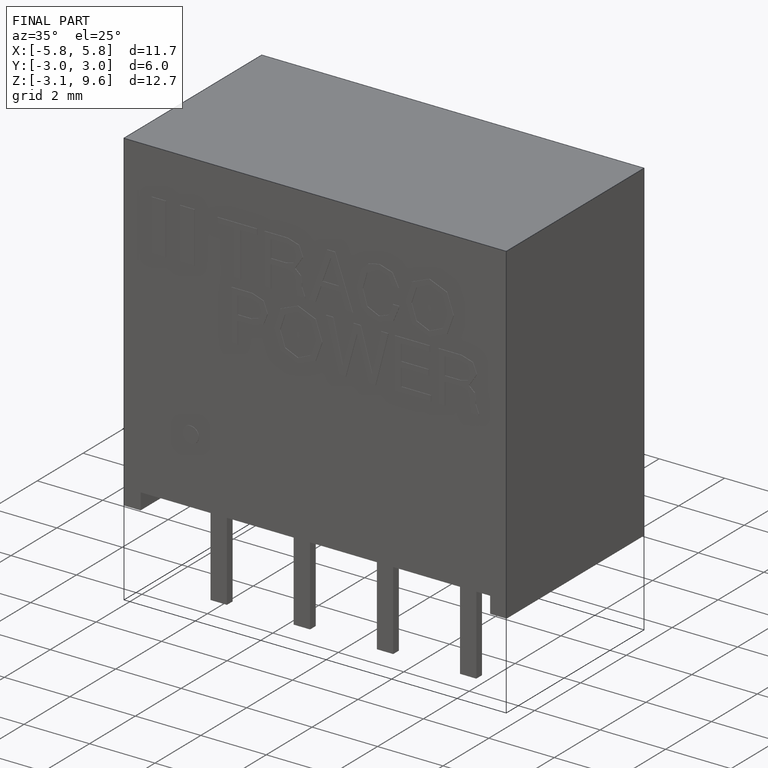
[diagram: finished part — iso view with bounding-box wireframe]
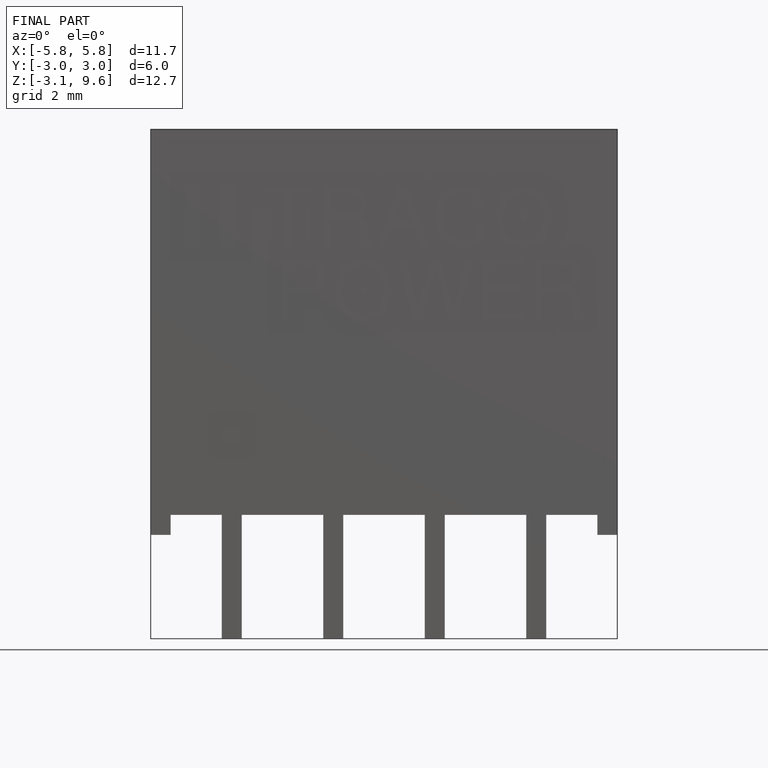
[diagram: finished part — front view with bounding-box wireframe]
